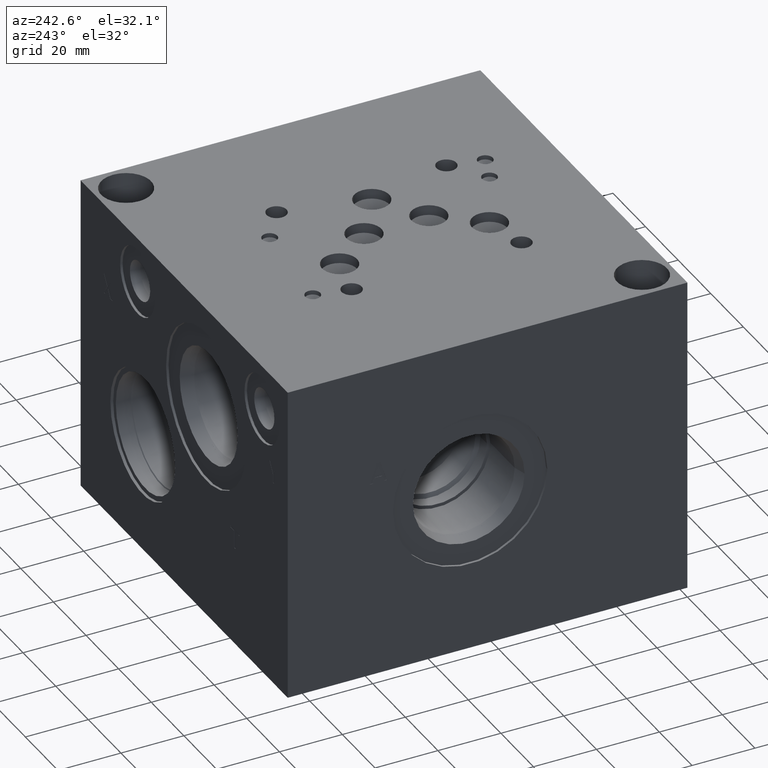
[diagram: clean part render]
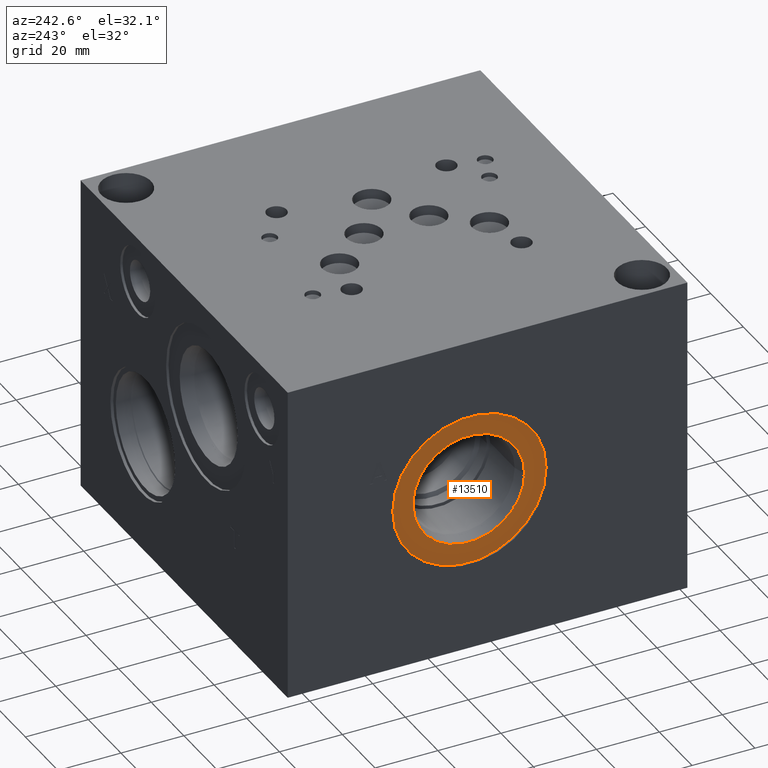
[diagram: same view with one face highlighted and labeled with its STEP entity id]
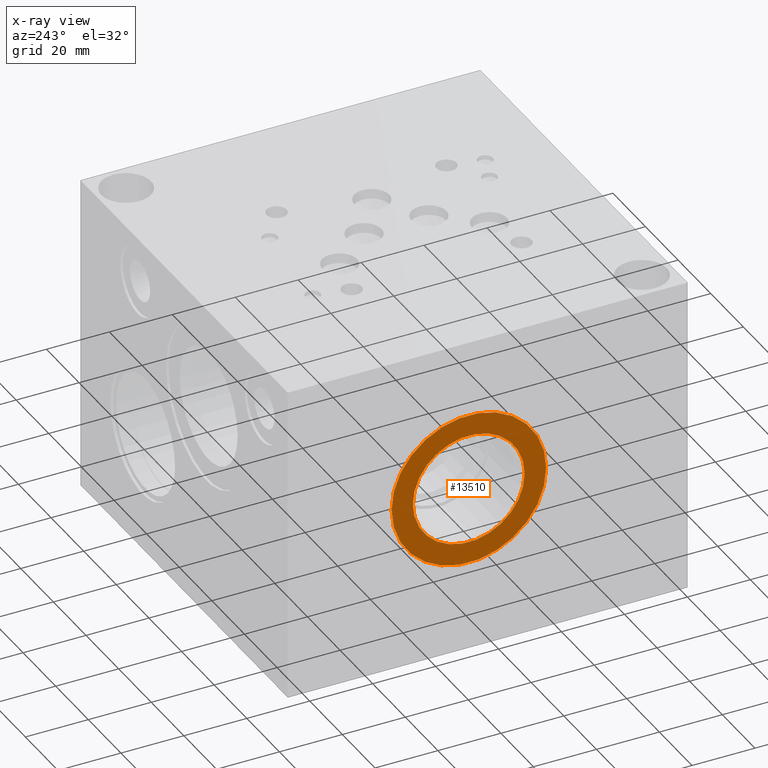
[diagram: x-ray of the same camera — body ghosted, the highlighted face saturated]
A machine part, auxiliary view. The second image highlights one B-rep face of the part: STEP entity #13510.
The next image is the same camera in x-ray: the body ghosted, the highlighted face saturated — about 0% of this face is hidden behind the body in this view.
In plain terms, the highlighted planar face has unit normal (-1, 0, 0).
Its self-contained STEP definition (entity closure, byte-faithful):
#353=CIRCLE('',#14250,24.5618);
#354=CIRCLE('',#14251,24.5618);
#355=CIRCLE('',#14252,17.7546);
#548=FACE_BOUND('',#2361,.T.);
#950=PLANE('',#14249);
#1589=FACE_OUTER_BOUND('',#2360,.T.);
#2360=EDGE_LOOP('',(#11770,#11771));
#2361=EDGE_LOOP('',(#11772));
#6432=VERTEX_POINT('',#23080);
#6433=VERTEX_POINT('',#23081);
#6434=VERTEX_POINT('',#23084);
#8269=EDGE_CURVE('',#6432,#6433,#353,.T.);
#8270=EDGE_CURVE('',#6433,#6432,#354,.T.);
#8271=EDGE_CURVE('',#6434,#6434,#355,.T.);
#11770=ORIENTED_EDGE('',*,*,#8269,.T.);
#11771=ORIENTED_EDGE('',*,*,#8270,.T.);
#11772=ORIENTED_EDGE('',*,*,#8271,.F.);
#13510=ADVANCED_FACE('',(#1589,#548),#950,.T.);
#14249=AXIS2_PLACEMENT_3D('',#23079,#16921,#16922);
#14250=AXIS2_PLACEMENT_3D('',#23082,#16923,#16924);
#14251=AXIS2_PLACEMENT_3D('',#23083,#16925,#16926);
#14252=AXIS2_PLACEMENT_3D('',#23085,#16927,#16928);
#16921=DIRECTION('center_axis',(-1.,0.,0.));
#16922=DIRECTION('ref_axis',(0.,1.,0.));
#16923=DIRECTION('center_axis',(-1.,0.,0.));
#16924=DIRECTION('ref_axis',(0.,1.,0.));
#16925=DIRECTION('center_axis',(-1.,0.,0.));
#16926=DIRECTION('ref_axis',(0.,1.,0.));
#16927=DIRECTION('center_axis',(-1.,0.,0.));
#16928=DIRECTION('ref_axis',(0.,1.,0.));
#23079=CARTESIAN_POINT('Origin',(0.7874,69.0626,52.3748));
#23080=CARTESIAN_POINT('',(0.7874,93.6244,52.3748));
#23081=CARTESIAN_POINT('',(0.7874,44.5008,52.3748));
#23082=CARTESIAN_POINT('Origin',(0.7874,69.0626,52.3748));
#23083=CARTESIAN_POINT('Origin',(0.7874,69.0626,52.3748));
#23084=CARTESIAN_POINT('',(0.7874,51.308,52.3748));
#23085=CARTESIAN_POINT('Origin',(0.7874,69.0626,52.3748));